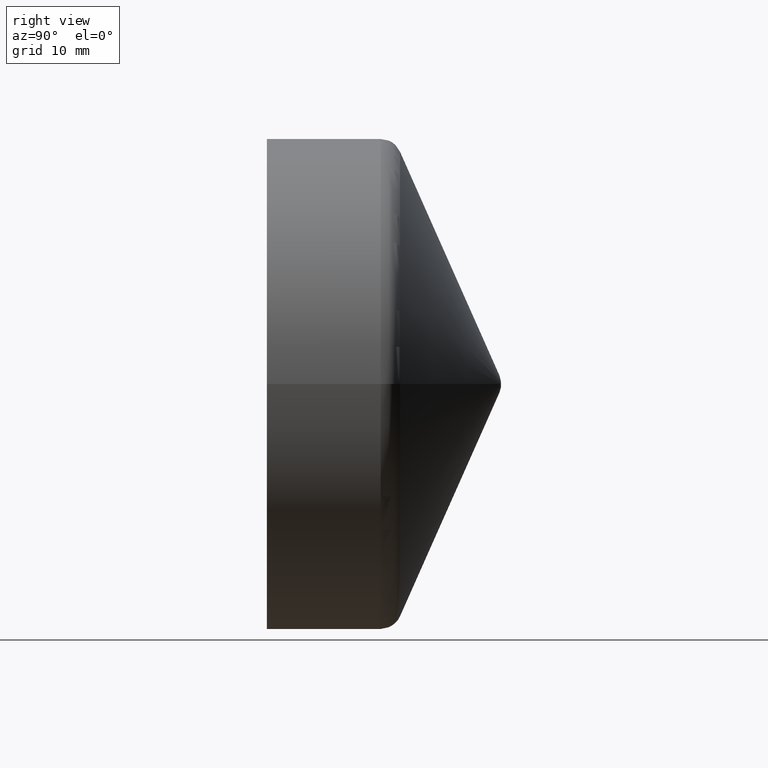
[diagram: clean part render]
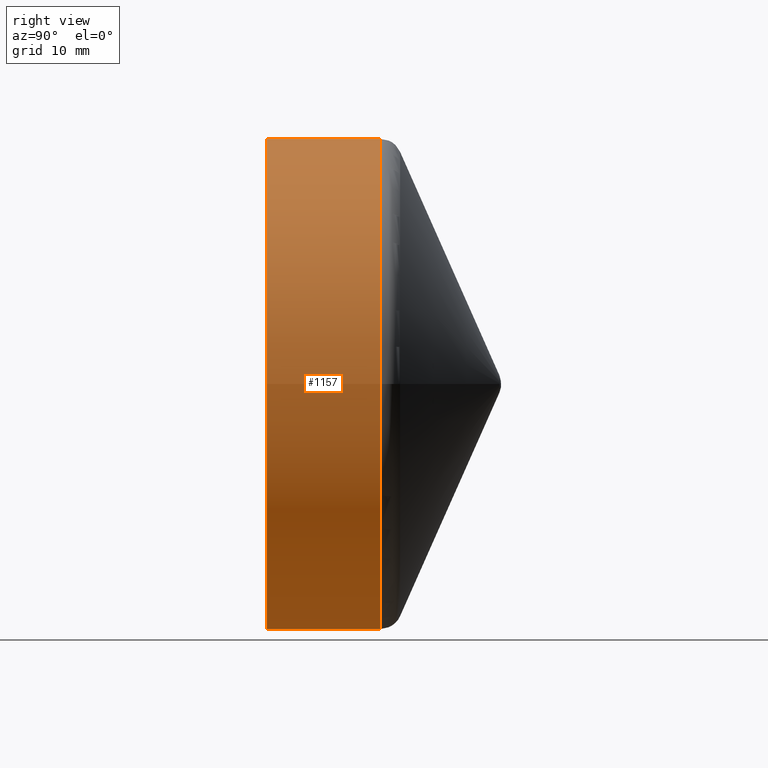
[diagram: same view with one face highlighted and labeled with its STEP entity id]
A machine part, right view. The second image highlights one B-rep face of the part: STEP entity #1157.
In plain terms, the highlighted cylindrical surface (bore or boss wall) has radius 23 mm, axis along (0, -1, -0).
Its self-contained STEP definition (entity closure, byte-faithful):
#117 = CARTESIAN_POINT ( 'NONE',  ( 23.00000000000000000, 4.694479396731526800E-016, 0.0000000000000000000 ) ) ;
#547 = FACE_OUTER_BOUND ( 'NONE', #4550, .T. ) ;
#887 = CARTESIAN_POINT ( 'NONE',  ( 4.490371596873634900E-016, 0.0000000000000000000, 0.0000000000000000000 ) ) ;
#996 = FACE_OUTER_BOUND ( 'NONE', #2540, .T. ) ;
#1035 = AXIS2_PLACEMENT_3D ( 'NONE', #5892, #7354, #5295 ) ;
#1102 = CIRCLE ( 'NONE', #3610, 23.00000000000000000 ) ;
#1157 = ADVANCED_FACE ( 'NONE', ( #996, #547 ), #5119, .T. ) ;
#1352 = EDGE_CURVE ( 'NONE', #1885, #1885, #1102, .T. ) ;
#1420 = VERTEX_POINT ( 'NONE', #3631 ) ;
#1511 = ORIENTED_EDGE ( 'NONE', *, *, #1352, .F. ) ;
#1776 = CARTESIAN_POINT ( 'NONE',  ( 2.312092690206327800E-016, 10.67219826084013500, 0.0000000000000000000 ) ) ;
#1885 = VERTEX_POINT ( 'NONE', #117 ) ;
#2540 = EDGE_LOOP ( 'NONE', ( #4149 ) ) ;
#3572 = CIRCLE ( 'NONE', #4874, 23.00000000000000000 ) ;
#3610 = AXIS2_PLACEMENT_3D ( 'NONE', #887, #5202, #8724 ) ;
#3631 = CARTESIAN_POINT ( 'NONE',  ( 23.00000000000000000, 10.67219826084013500, 0.0000000000000000000 ) ) ;
#3804 = DIRECTION ( 'NONE',  ( 1.000000000000000000, 0.0000000000000000000, 0.0000000000000000000 ) ) ;
#4149 = ORIENTED_EDGE ( 'NONE', *, *, #7607, .T. ) ;
#4550 = EDGE_LOOP ( 'NONE', ( #1511 ) ) ;
#4874 = AXIS2_PLACEMENT_3D ( 'NONE', #1776, #8846, #3804 ) ;
#5119 = CYLINDRICAL_SURFACE ( 'NONE', #1035, 23.00000000000000000 ) ;
#5202 = DIRECTION ( 'NONE',  ( 2.041077998578925000E-017, -1.000000000000000000, -0.0000000000000000000 ) ) ;
#5295 = DIRECTION ( 'NONE',  ( 1.000000000000000000, 0.0000000000000000000, 0.0000000000000000000 ) ) ;
#5892 = CARTESIAN_POINT ( 'NONE',  ( 3.061616997868383000E-017, 20.50000000000000000, 0.0000000000000000000 ) ) ;
#7354 = DIRECTION ( 'NONE',  ( 2.041077998578925000E-017, -1.000000000000000000, -0.0000000000000000000 ) ) ;
#7607 = EDGE_CURVE ( 'NONE', #1420, #1420, #3572, .T. ) ;
#8724 = DIRECTION ( 'NONE',  ( 1.000000000000000000, 2.041077998578924700E-017, 0.0000000000000000000 ) ) ;
#8846 = DIRECTION ( 'NONE',  ( 2.041077998578925000E-017, -1.000000000000000000, -0.0000000000000000000 ) ) ;